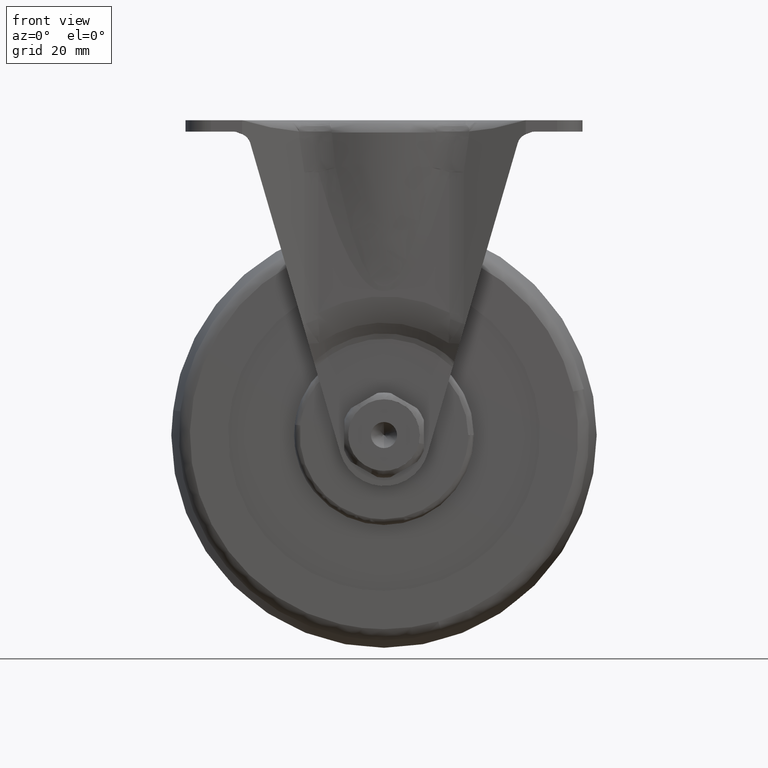
[diagram: clean part render]
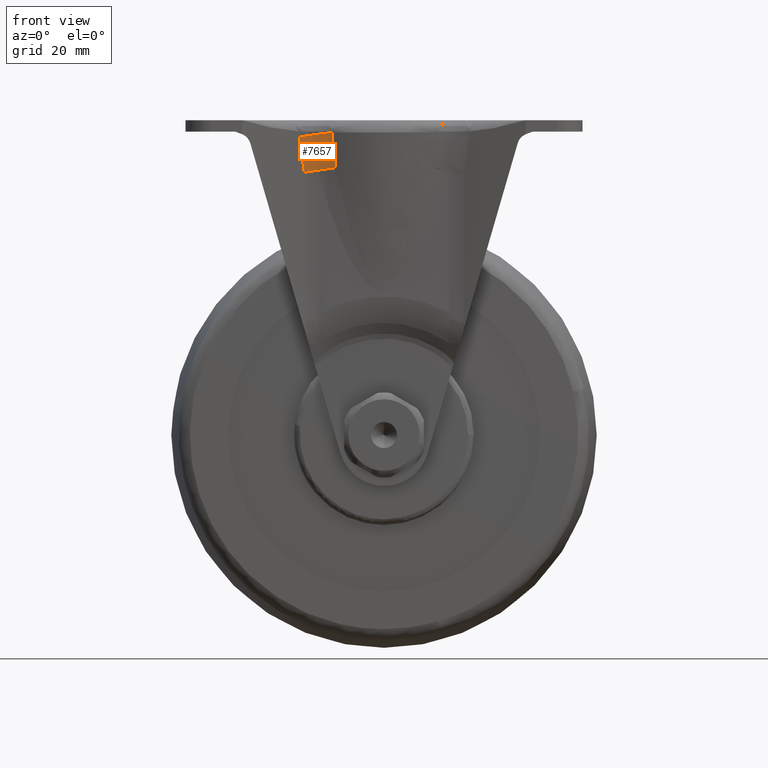
[diagram: same view with one face highlighted and labeled with its STEP entity id]
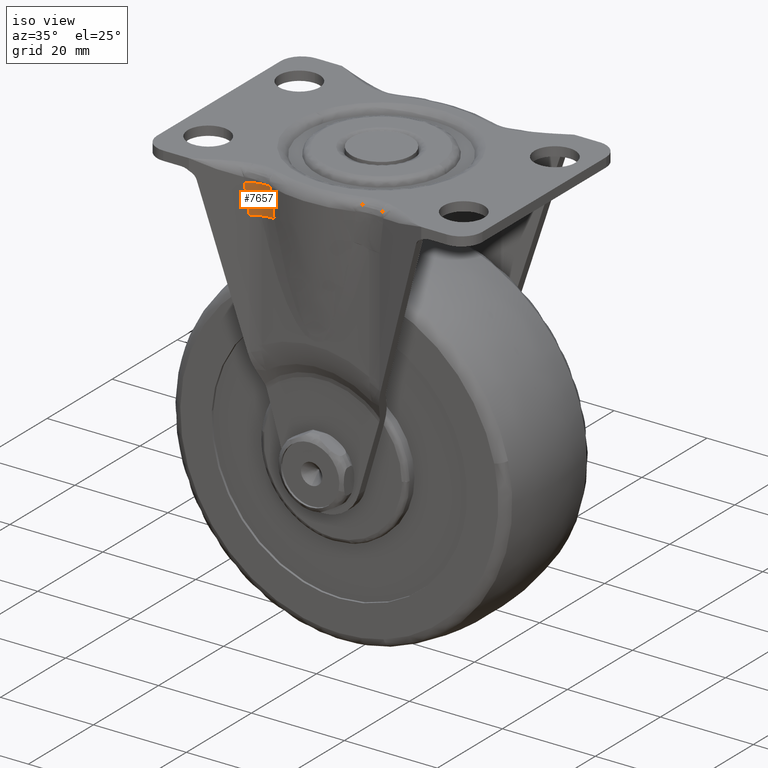
[diagram: same view with one face highlighted and labeled with its STEP entity id]
A machine part, front view. The second image highlights one B-rep face of the part: STEP entity #7657.
A second angle (iso view) of the same face is appended — the face is thin or edge-on in the first view.
In plain terms, the highlighted face is a freeform B-spline surface patch.
Its self-contained STEP definition (entity closure, byte-faithful):
#7545=CARTESIAN_POINT('',(-14.050705538612499,-20.672370080912000,-9.167164908905351));
#7546=VERTEX_POINT('',#7545);
#7560=CARTESIAN_POINT('',(-8.530786592763409,-20.856096325523851,-8.355456641424510));
#7561=VERTEX_POINT('',#7560);
#7575=CARTESIAN_POINT('',(-8.530786592763413,-20.856096325523829,-8.355456641424450));
#7576=CARTESIAN_POINT('',(-11.268819005064300,-19.953958666741034,-8.727021238587236));
#7577=CARTESIAN_POINT('',(-14.050705538612510,-20.672370080911978,-9.167164908905342));
#7585=(BOUNDED_CURVE()B_SPLINE_CURVE(2,(#7575,#7576,#7577),.UNSPECIFIED.,.F.,.U.)CURVE()GEOMETRIC_REPRESENTATION_ITEM()QUASI_UNIFORM_CURVE()RATIONAL_B_SPLINE_CURVE((1.0,0.960257607606938,1.0))REPRESENTATION_ITEM(''));
#7586=EDGE_CURVE('',#7561,#7546,#7585,.T.);
#7591=CARTESIAN_POINT('',(-9.194319491833376,-21.165417021950081,-2.161020265575988));
#7592=CARTESIAN_POINT('',(-8.972572569470643,-21.060967520509550,-4.279626513963270));
#7593=CARTESIAN_POINT('',(-8.751358967718325,-20.957858281386581,-6.344125130612582));
#7594=CARTESIAN_POINT('',(-8.530786592763407,-20.856096325523868,-8.355456641424144));
#7595=CARTESIAN_POINT('',(-12.036877248424814,-20.152306730949945,-2.526375202716797));
#7596=CARTESIAN_POINT('',(-11.780540125075674,-20.086108662459470,-4.647122527974022));
#7597=CARTESIAN_POINT('',(-11.524467348171664,-20.019978860383731,-6.713690688528923));
#7598=CARTESIAN_POINT('',(-11.268819005064271,-19.953958666740974,-8.727021238588067));
#7599=CARTESIAN_POINT('',(-14.949097329199130,-20.904376278494642,-2.966121593460991));
#7600=CARTESIAN_POINT('',(-14.648862608650269,-20.826841825679701,-5.087027876449985));
#7601=CARTESIAN_POINT('',(-14.349349978530720,-20.749493849918299,-7.153727930663438));
#7602=CARTESIAN_POINT('',(-14.050705538612450,-20.672370080911971,-9.167164908907232));
#7610=(BOUNDED_SURFACE()B_SPLINE_SURFACE(3,2,((#7591,#7595,#7599),(#7592,#7596,#7600),(#7593,#7597,#7601),(#7594,#7598,#7602)),.UNSPECIFIED.,.F.,.F.,.U.)B_SPLINE_SURFACE_WITH_KNOTS((4,4),(3,3),(0.0,6.430362622758299),(0.0,5.945177410282320),.UNSPECIFIED.)GEOMETRIC_REPRESENTATION_ITEM()RATIONAL_B_SPLINE_SURFACE(((1.0,0.956773486286929,1.0),(1.0,0.957967221768434,1.0),(1.0,0.959128302972491,1.0),(1.0,0.960257607606934,1.0)))REPRESENTATION_ITEM('')SURFACE());
#7611=CARTESIAN_POINT('',(-9.194319491833340,-21.165417021950049,-2.161020265576605));
#7612=VERTEX_POINT('',#7611);
#7613=CARTESIAN_POINT('',(-14.949097329199100,-20.904376278494649,-2.966121593459755));
#7614=VERTEX_POINT('',#7613);
#7615=CARTESIAN_POINT('',(-9.194319491833344,-21.165417021950070,-2.161020265576628));
#7616=CARTESIAN_POINT('',(-12.036877248424794,-20.152306730950045,-2.526375202716464));
#7617=CARTESIAN_POINT('',(-14.949097329199089,-20.904376278494681,-2.966121593459757));
#7625=(BOUNDED_CURVE()B_SPLINE_CURVE(2,(#7615,#7616,#7617),.UNSPECIFIED.,.F.,.U.)CURVE()GEOMETRIC_REPRESENTATION_ITEM()QUASI_UNIFORM_CURVE()RATIONAL_B_SPLINE_CURVE((1.0,0.956773486286933,1.0))REPRESENTATION_ITEM(''));
#7626=EDGE_CURVE('',#7612,#7614,#7625,.T.);
#7627=ORIENTED_EDGE('',*,*,#7626,.T.);
#7628=CARTESIAN_POINT('',(-14.050705538612499,-20.672370080912000,-9.167164908905351));
#7629=CARTESIAN_POINT('',(-14.501737030475887,-20.788847215402406,-6.126346588466891));
#7630=CARTESIAN_POINT('',(-14.949097329199100,-20.904376278494649,-2.966121593459755));
#7638=(BOUNDED_CURVE()B_SPLINE_CURVE(2,(#7628,#7629,#7630),.UNSPECIFIED.,.F.,.U.)CURVE()GEOMETRIC_REPRESENTATION_ITEM()QUASI_UNIFORM_CURVE()RATIONAL_B_SPLINE_CURVE((1.0,0.999923522222660,1.0))REPRESENTATION_ITEM(''));
#7639=EDGE_CURVE('',#7546,#7614,#7638,.T.);
#7640=ORIENTED_EDGE('',*,*,#7639,.F.);
#7641=ORIENTED_EDGE('',*,*,#7586,.F.);
#7642=CARTESIAN_POINT('',(-9.194319491833388,-21.165417021950049,-2.161020265576630));
#7643=CARTESIAN_POINT('',(-8.863908774537475,-21.009783589364911,-5.317818126593266));
#7644=CARTESIAN_POINT('',(-8.530786592763459,-20.856096325523840,-8.355456641424508));
#7652=(BOUNDED_CURVE()B_SPLINE_CURVE(2,(#7642,#7643,#7644),.UNSPECIFIED.,.F.,.U.)CURVE()GEOMETRIC_REPRESENTATION_ITEM()QUASI_UNIFORM_CURVE()RATIONAL_B_SPLINE_CURVE((1.0,0.999923522220974,1.0))REPRESENTATION_ITEM(''));
#7653=EDGE_CURVE('',#7612,#7561,#7652,.T.);
#7654=ORIENTED_EDGE('',*,*,#7653,.F.);
#7655=EDGE_LOOP('',(#7627,#7640,#7641,#7654));
#7656=FACE_OUTER_BOUND('',#7655,.T.);
#7657=ADVANCED_FACE('',(#7656),#7610,.F.);